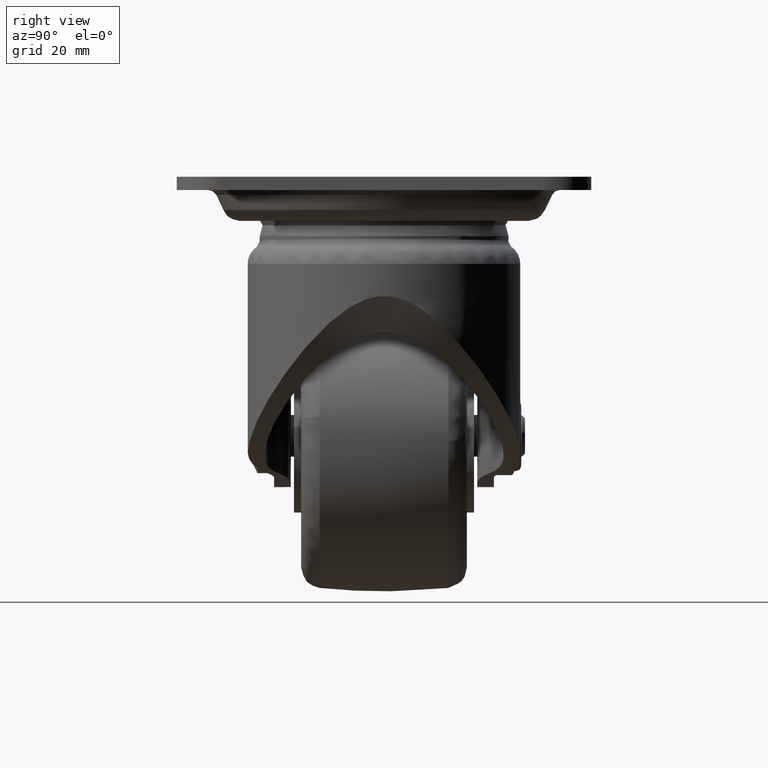
[diagram: clean part render]
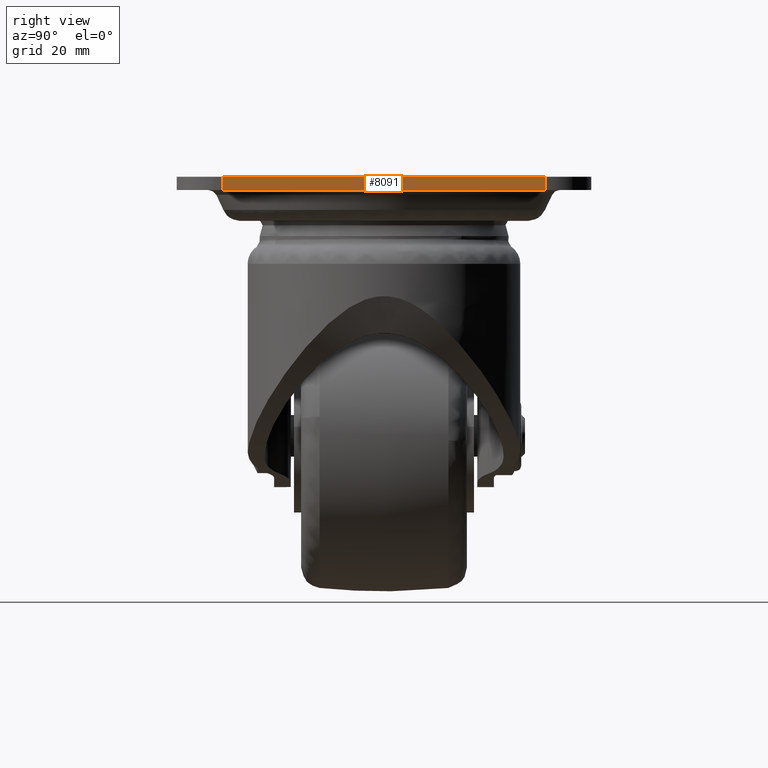
[diagram: same view with one face highlighted and labeled with its STEP entity id]
A machine part, right view. The second image highlights one B-rep face of the part: STEP entity #8091.
In plain terms, the highlighted face is a freeform B-spline surface patch.
Its self-contained STEP definition (entity closure, byte-faithful):
#7941=CARTESIAN_POINT('',(50.0,39.0,0.0));
#7942=VERTEX_POINT('',#7941);
#8011=CARTESIAN_POINT('',(50.0,-39.000002475958752,0.0));
#8012=VERTEX_POINT('',#8011);
#8026=CARTESIAN_POINT('',(50.0,-39.000002475958752,0.0));
#8027=CARTESIAN_POINT('',(50.0,39.0,0.0));
#8028=QUASI_UNIFORM_CURVE('',1,(#8026,#8027),.UNSPECIFIED.,.F.,.U.);
#8029=EDGE_CURVE('',#8012,#7942,#8028,.T.);
#8064=CARTESIAN_POINT('',(50.0,-42.896103912870167,-3.359840053876400));
#8065=CARTESIAN_POINT('',(50.0,42.896102134285798,-3.359840053876400));
#8066=CARTESIAN_POINT('',(50.0,-42.896103912870167,0.159840082486629));
#8067=CARTESIAN_POINT('',(50.0,42.896102134285798,0.159840082486629));
#8068=B_SPLINE_SURFACE_WITH_KNOTS('',1,1,((#8064,#8066),(#8065,#8067)),.UNSPECIFIED.,.F.,.F.,.U.,(2,2),(2,2),(0.0,85.792206047155972),(0.0,3.519680136363029),.UNSPECIFIED.);
#8069=ORIENTED_EDGE('',*,*,#8029,.F.);
#8070=CARTESIAN_POINT('',(50.0,-39.000002475958752,-3.200000000000000));
#8071=VERTEX_POINT('',#8070);
#8072=CARTESIAN_POINT('',(50.0,-39.000002475958752,-3.200000000000000));
#8073=CARTESIAN_POINT('',(50.0,-39.000002475958752,0.0));
#8074=QUASI_UNIFORM_CURVE('',1,(#8072,#8073),.UNSPECIFIED.,.F.,.U.);
#8075=EDGE_CURVE('',#8071,#8012,#8074,.T.);
#8076=ORIENTED_EDGE('',*,*,#8075,.F.);
#8077=CARTESIAN_POINT('',(50.0,39.0,-3.200000000000000));
#8078=VERTEX_POINT('',#8077);
#8079=CARTESIAN_POINT('',(50.0,-39.000002475958752,-3.200000000000000));
#8080=CARTESIAN_POINT('',(50.0,39.0,-3.200000000000000));
#8081=QUASI_UNIFORM_CURVE('',1,(#8079,#8080),.UNSPECIFIED.,.F.,.U.);
#8082=EDGE_CURVE('',#8071,#8078,#8081,.T.);
#8083=ORIENTED_EDGE('',*,*,#8082,.T.);
#8084=CARTESIAN_POINT('',(50.0,39.0,-3.200000000000000));
#8085=CARTESIAN_POINT('',(50.0,39.0,0.0));
#8086=QUASI_UNIFORM_CURVE('',1,(#8084,#8085),.UNSPECIFIED.,.F.,.U.);
#8087=EDGE_CURVE('',#8078,#7942,#8086,.T.);
#8088=ORIENTED_EDGE('',*,*,#8087,.T.);
#8089=EDGE_LOOP('',(#8069,#8076,#8083,#8088));
#8090=FACE_OUTER_BOUND('',#8089,.T.);
#8091=ADVANCED_FACE('',(#8090),#8068,.T.);